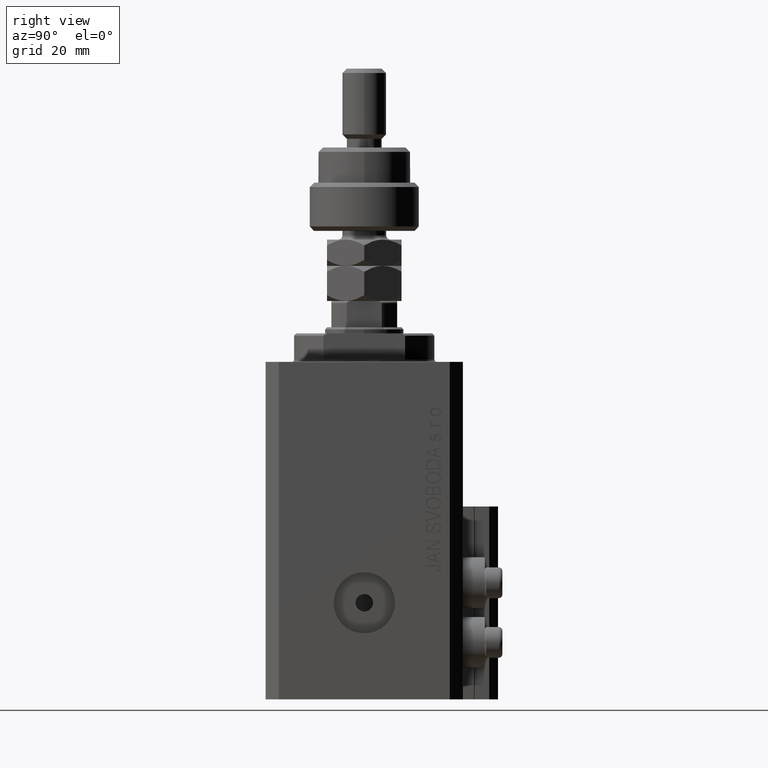
[diagram: clean part render]
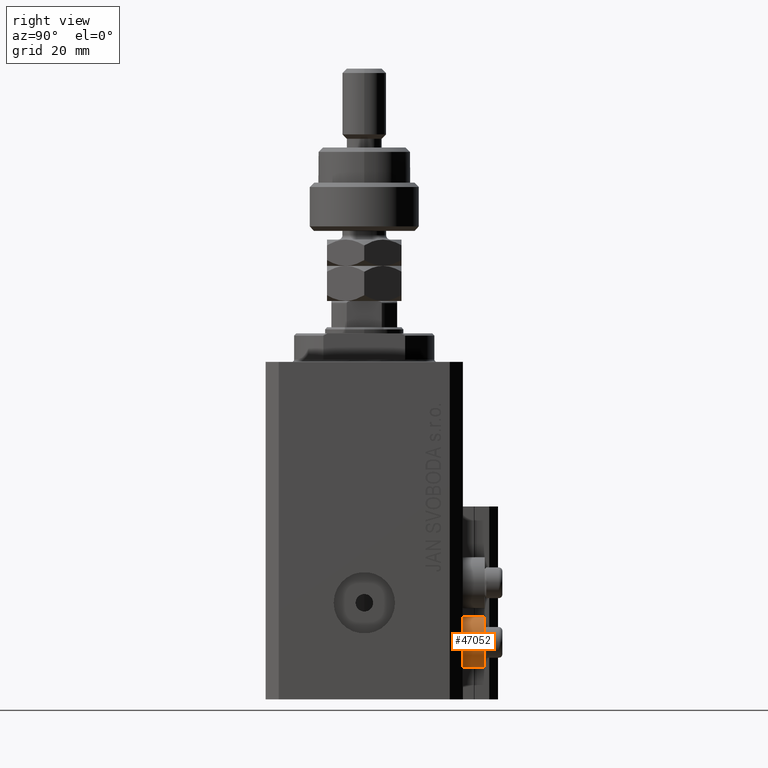
[diagram: same view with one face highlighted and labeled with its STEP entity id]
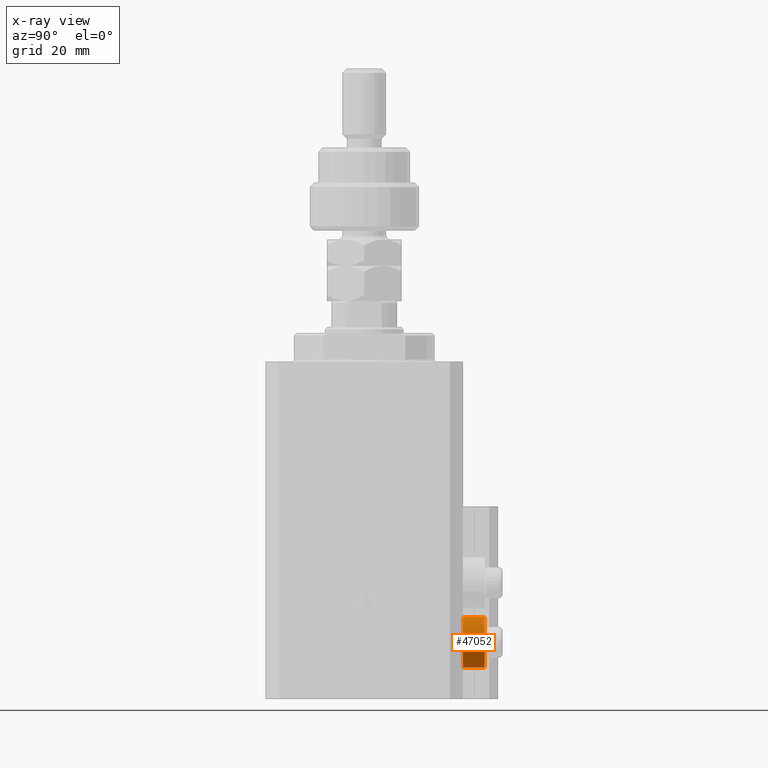
[diagram: x-ray of the same camera — body ghosted, the highlighted face saturated]
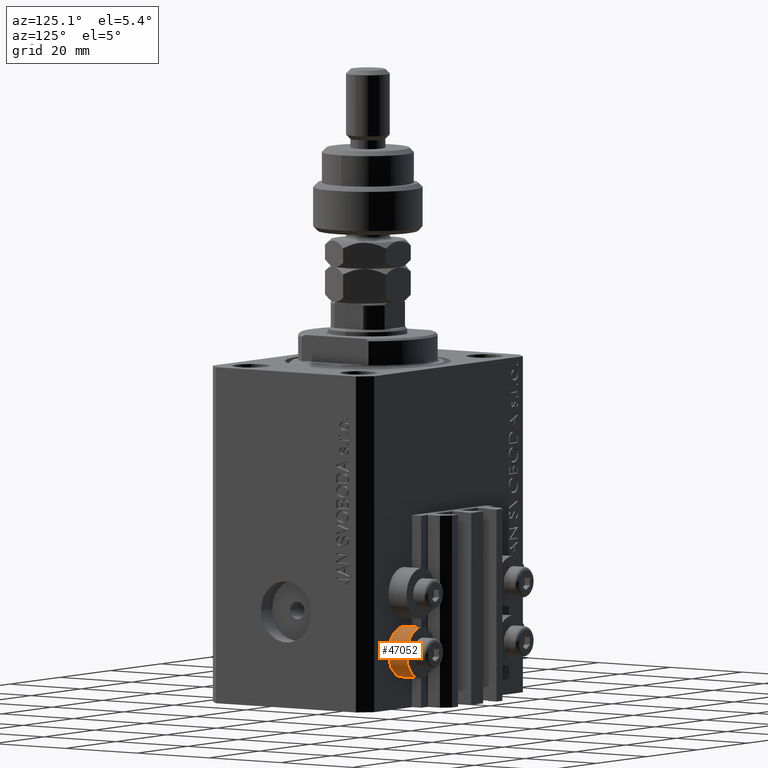
[diagram: same view with one face highlighted and labeled with its STEP entity id]
A machine part, right view. The second image highlights one B-rep face of the part: STEP entity #47052.
The next image is the same camera in x-ray: the body ghosted, the highlighted face saturated — about 0% of this face is hidden behind the body in this view.
A second angle (auxiliary view) of the same face is appended — the face is thin or edge-on in the first view.
In plain terms, the highlighted cylindrical surface (edge-blend (fillet) strip) has radius 5.8 mm, axis along (0, 1, 0).
Its self-contained STEP definition (entity closure, byte-faithful):
#1709 = VECTOR ( 'NONE', #5323, 1000.000000000000000 ) ;
#4282 = DIRECTION ( 'NONE',  ( 0.000000000000000000, 0.000000000000000000, -1.000000000000000000 ) ) ;
#5046 = DIRECTION ( 'NONE',  ( 0.000000000000000000, 0.000000000000000000, -1.000000000000000000 ) ) ;
#5323 = DIRECTION ( 'NONE',  ( 0.000000000000000000, 1.000000000000000000, 0.000000000000000000 ) ) ;
#5356 = VECTOR ( 'NONE', #19526, 1000.000000000000000 ) ;
#6102 = EDGE_CURVE ( 'NONE', #47145, #19659, #32718, .T. ) ;
#6864 = CARTESIAN_POINT ( 'NONE',  ( 18.00000000000000355, 27.49999999996051514, -58.20000000000000284 ) ) ;
#7563 = CARTESIAN_POINT ( 'NONE',  ( 18.00000000000000355, 22.49999999999951328, -69.79999999999999716 ) ) ;
#9630 = CARTESIAN_POINT ( 'NONE',  ( 18.00000000000000355, 27.49999999996051514, -69.79999999999999716 ) ) ;
#11686 = LINE ( 'NONE', #6864, #5356 ) ;
#17313 = AXIS2_PLACEMENT_3D ( 'NONE', #43668, #39843, #5046 ) ;
#18400 = CARTESIAN_POINT ( 'NONE',  ( 18.00000000000000355, 22.49999999999951328, -58.20000000000000284 ) ) ;
#19391 = EDGE_CURVE ( 'NONE', #47145, #38101, #11686, .T. ) ;
#19526 = DIRECTION ( 'NONE',  ( 0.000000000000000000, 1.000000000000000000, 0.000000000000000000 ) ) ;
#19659 = VERTEX_POINT ( 'NONE', #7563 ) ;
#21215 = DIRECTION ( 'NONE',  ( 0.000000000000000000, 1.000000000000000000, 0.000000000000000000 ) ) ;
#21580 = CARTESIAN_POINT ( 'NONE',  ( 18.00000000000000355, 27.49999999996051514, -69.79999999999999716 ) ) ;
#27276 = ORIENTED_EDGE ( 'NONE', *, *, #37786, .F. ) ;
#28097 = CYLINDRICAL_SURFACE ( 'NONE', #30195, 5.799999999999999822 ) ;
#29091 = CARTESIAN_POINT ( 'NONE',  ( 18.00000000000000355, 27.49999999996051514, -64.00000000000000000 ) ) ;
#29328 = ORIENTED_EDGE ( 'NONE', *, *, #35668, .T. ) ;
#29402 = CIRCLE ( 'NONE', #33447, 5.799999999999999822 ) ;
#30119 = ORIENTED_EDGE ( 'NONE', *, *, #19391, .F. ) ;
#30195 = AXIS2_PLACEMENT_3D ( 'NONE', #29091, #21215, #47911 ) ;
#30967 = CARTESIAN_POINT ( 'NONE',  ( 18.00000000000000355, 27.49999999996051514, -64.00000000000000000 ) ) ;
#32718 = CIRCLE ( 'NONE', #17313, 5.799999999999999822 ) ;
#33447 = AXIS2_PLACEMENT_3D ( 'NONE', #30967, #34278, #4282 ) ;
#34278 = DIRECTION ( 'NONE',  ( 0.000000000000000000, 1.000000000000000000, 0.000000000000000000 ) ) ;
#35668 = EDGE_CURVE ( 'NONE', #19659, #49858, #44200, .T. ) ;
#37786 = EDGE_CURVE ( 'NONE', #38101, #49858, #29402, .T. ) ;
#38101 = VERTEX_POINT ( 'NONE', #45794 ) ;
#39843 = DIRECTION ( 'NONE',  ( 0.000000000000000000, 1.000000000000000000, 0.000000000000000000 ) ) ;
#40885 = EDGE_LOOP ( 'NONE', ( #30119, #47343, #29328, #27276 ) ) ;
#43668 = CARTESIAN_POINT ( 'NONE',  ( 18.00000000000000355, 22.49999999999951328, -64.00000000000000000 ) ) ;
#44200 = LINE ( 'NONE', #21580, #1709 ) ;
#45794 = CARTESIAN_POINT ( 'NONE',  ( 18.00000000000000355, 27.49999999996051514, -58.20000000000000284 ) ) ;
#47052 = ADVANCED_FACE ( 'NONE', ( #47657 ), #28097, .T. ) ;
#47145 = VERTEX_POINT ( 'NONE', #18400 ) ;
#47343 = ORIENTED_EDGE ( 'NONE', *, *, #6102, .T. ) ;
#47657 = FACE_OUTER_BOUND ( 'NONE', #40885, .T. ) ;
#47911 = DIRECTION ( 'NONE',  ( 0.000000000000000000, 0.000000000000000000, -1.000000000000000000 ) ) ;
#49858 = VERTEX_POINT ( 'NONE', #9630 ) ;